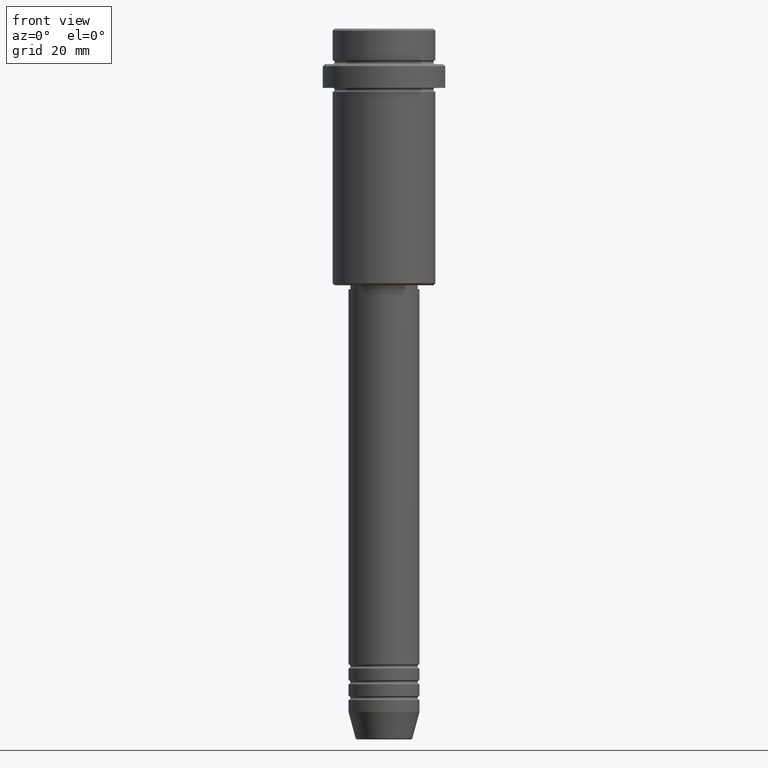
[diagram: clean part render]
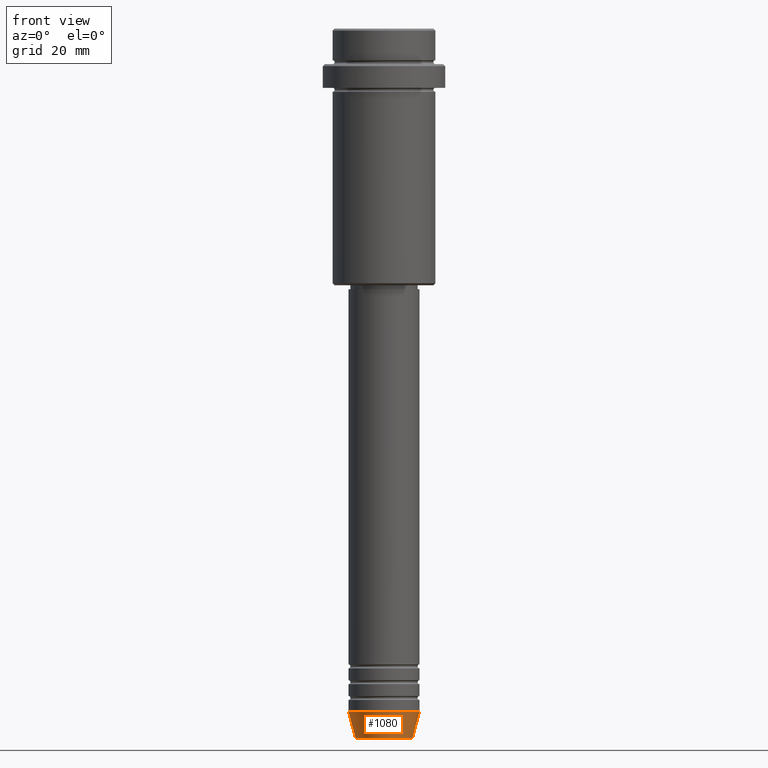
[diagram: same view with one face highlighted and labeled with its STEP entity id]
A machine part, front view. The second image highlights one B-rep face of the part: STEP entity #1080.
In plain terms, the highlighted conical surface has half-angle 15 deg.
Its self-contained STEP definition (entity closure, byte-faithful):
#99 = DIRECTION ( 'NONE',  ( 1.000000000000000000, 0.000000000000000000, 0.000000000000000000 ) ) ;
#100 = AXIS2_PLACEMENT_3D ( 'NONE', #181, #1079, #1255 ) ;
#109 = DIRECTION ( 'NONE',  ( -0.000000000000000000, -0.000000000000000000, 1.000000000000000000 ) ) ;
#114 = EDGE_CURVE ( 'NONE', #758, #1396, #122, .T. ) ;
#122 = LINE ( 'NONE', #787, #1103 ) ;
#181 = CARTESIAN_POINT ( 'NONE',  ( 0.000000000000000000, 0.000000000000000000, -173.0000000000000000 ) ) ;
#205 = CARTESIAN_POINT ( 'NONE',  ( 0.000000000000000000, 0.000000000000000000, -173.0000000000000000 ) ) ;
#313 = CIRCLE ( 'NONE', #1122, 7.223655072137188604 ) ;
#389 = ORIENTED_EDGE ( 'NONE', *, *, #114, .F. ) ;
#433 = DIRECTION ( 'NONE',  ( -0.000000000000000000, -0.000000000000000000, 1.000000000000000000 ) ) ;
#463 = FACE_OUTER_BOUND ( 'NONE', #1112, .T. ) ;
#516 = EDGE_CURVE ( 'NONE', #758, #1018, #313, .T. ) ;
#537 = ORIENTED_EDGE ( 'NONE', *, *, #516, .T. ) ;
#657 = CARTESIAN_POINT ( 'NONE',  ( -7.223655072137189492, 9.934123627281765110E-16, -179.6294095225512706 ) ) ;
#743 = CARTESIAN_POINT ( 'NONE',  ( -9.000000000000000000, 1.102182119232617714E-15, -173.0000000000000000 ) ) ;
#758 = VERTEX_POINT ( 'NONE', #657 ) ;
#781 = CONICAL_SURFACE ( 'NONE', #1058, 9.000000000000000000, 0.2617993877991500740 ) ;
#787 = CARTESIAN_POINT ( 'NONE',  ( -9.000000000000000000, 1.102182119232617714E-15, -173.0000000000000000 ) ) ;
#856 = DIRECTION ( 'NONE',  ( 0.2588190451025213501, 0.000000000000000000, 0.9659258262890680902 ) ) ;
#876 = CARTESIAN_POINT ( 'NONE',  ( 9.000000000000000000, 0.000000000000000000, -173.0000000000000000 ) ) ;
#883 = LINE ( 'NONE', #876, #1083 ) ;
#891 = CIRCLE ( 'NONE', #100, 9.000000000000000000 ) ;
#896 = CARTESIAN_POINT ( 'NONE',  ( 0.000000000000000000, 0.000000000000000000, -179.6294095225512706 ) ) ;
#925 = ORIENTED_EDGE ( 'NONE', *, *, #1227, .T. ) ;
#959 = VERTEX_POINT ( 'NONE', #1002 ) ;
#1002 = CARTESIAN_POINT ( 'NONE',  ( 9.000000000000000000, 0.000000000000000000, -173.0000000000000000 ) ) ;
#1018 = VERTEX_POINT ( 'NONE', #1336 ) ;
#1058 = AXIS2_PLACEMENT_3D ( 'NONE', #205, #433, #99 ) ;
#1079 = DIRECTION ( 'NONE',  ( -0.000000000000000000, -0.000000000000000000, 1.000000000000000000 ) ) ;
#1080 = ADVANCED_FACE ( 'NONE', ( #463 ), #781, .T. ) ;
#1083 = VECTOR ( 'NONE', #856, 1000.000000000000000 ) ;
#1103 = VECTOR ( 'NONE', #1217, 1000.000000000000000 ) ;
#1107 = DIRECTION ( 'NONE',  ( 1.000000000000000000, 0.000000000000000000, 0.000000000000000000 ) ) ;
#1112 = EDGE_LOOP ( 'NONE', ( #389, #537, #925, #1201 ) ) ;
#1122 = AXIS2_PLACEMENT_3D ( 'NONE', #896, #109, #1107 ) ;
#1159 = EDGE_CURVE ( 'NONE', #1396, #959, #891, .T. ) ;
#1201 = ORIENTED_EDGE ( 'NONE', *, *, #1159, .F. ) ;
#1217 = DIRECTION ( 'NONE',  ( -0.2588190451025213501, 3.169619151431772337E-17, 0.9659258262890680902 ) ) ;
#1227 = EDGE_CURVE ( 'NONE', #1018, #959, #883, .T. ) ;
#1255 = DIRECTION ( 'NONE',  ( 1.000000000000000000, 0.000000000000000000, 0.000000000000000000 ) ) ;
#1336 = CARTESIAN_POINT ( 'NONE',  ( 7.223655072137188604, 0.000000000000000000, -179.6294095225512706 ) ) ;
#1396 = VERTEX_POINT ( 'NONE', #743 ) ;